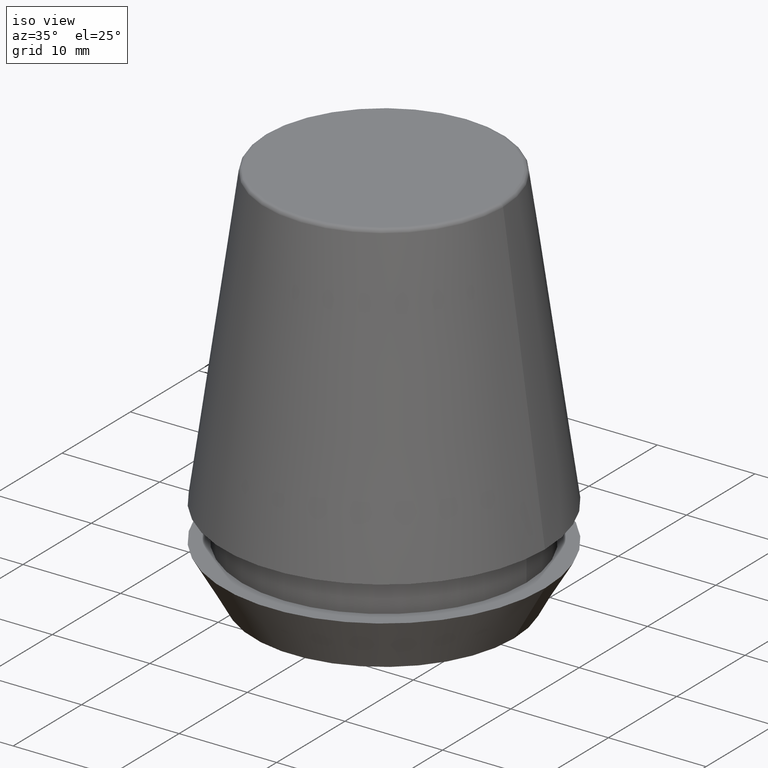
[diagram: clean part render]
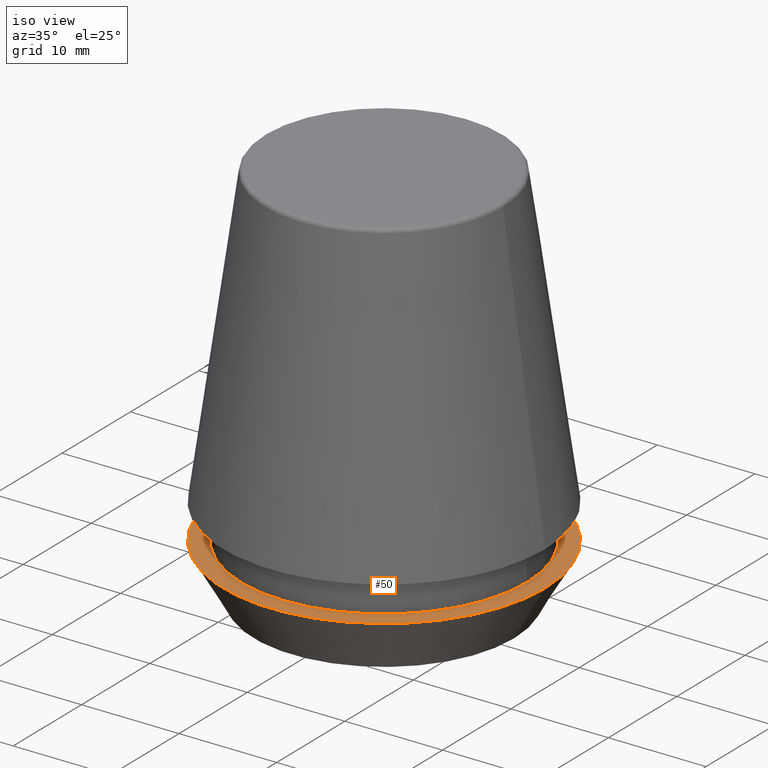
[diagram: same view with one face highlighted and labeled with its STEP entity id]
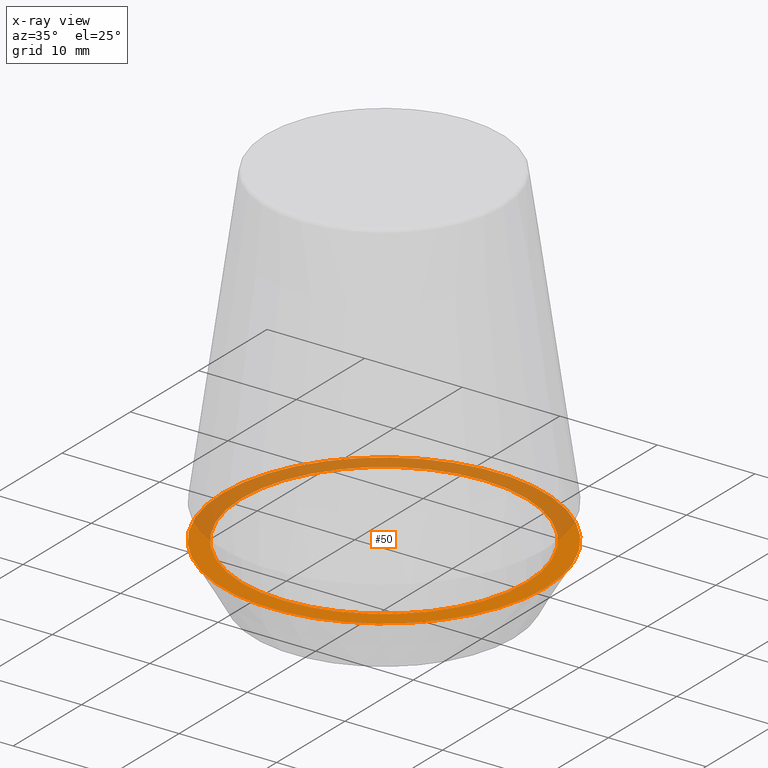
[diagram: x-ray of the same camera — body ghosted, the highlighted face saturated]
A machine part, iso view. The second image highlights one B-rep face of the part: STEP entity #50.
The next image is the same camera in x-ray: the body ghosted, the highlighted face saturated — about 46% of this face is hidden behind the body in this view.
In plain terms, the highlighted planar face has unit normal (0, 0, -1).
Its self-contained STEP definition (entity closure, byte-faithful):
#2 = CARTESIAN_POINT ( 'NONE',  ( 0.0000000000000000000, 0.0000000000000000000, 5.500000000000005300 ) ) ;
#3 = CARTESIAN_POINT ( 'NONE',  ( 16.50000000000000000, 0.0000000000000000000, 5.500000000000005300 ) ) ;
#13 = DIRECTION ( 'NONE',  ( 1.000000000000000000, 0.0000000000000000000, 0.0000000000000000000 ) ) ;
#28 = EDGE_CURVE ( 'NONE', #202, #146, #259, .T. ) ;
#32 = CARTESIAN_POINT ( 'NONE',  ( -14.60000000000000000, 1.787984326755135800E-015, 5.500000000000005300 ) ) ;
#50 = ADVANCED_FACE ( 'NONE', ( #162, #139 ), #126, .F. ) ;
#60 = DIRECTION ( 'NONE',  ( 1.000000000000000000, 0.0000000000000000000, 0.0000000000000000000 ) ) ;
#66 = DIRECTION ( 'NONE',  ( 0.0000000000000000000, 0.0000000000000000000, -1.000000000000000000 ) ) ;
#80 = EDGE_CURVE ( 'NONE', #95, #252, #267, .T. ) ;
#95 = VERTEX_POINT ( 'NONE', #222 ) ;
#101 = DIRECTION ( 'NONE',  ( -0.0000000000000000000, -0.0000000000000000000, 1.000000000000000000 ) ) ;
#109 = ORIENTED_EDGE ( 'NONE', *, *, #227, .F. ) ;
#126 = PLANE ( 'NONE',  #286 ) ;
#127 = DIRECTION ( 'NONE',  ( -0.0000000000000000000, -0.0000000000000000000, 1.000000000000000000 ) ) ;
#128 = ORIENTED_EDGE ( 'NONE', *, *, #181, .T. ) ;
#139 = FACE_OUTER_BOUND ( 'NONE', #196, .T. ) ;
#146 = VERTEX_POINT ( 'NONE', #306 ) ;
#161 = CIRCLE ( 'NONE', #197, 14.60000000000000000 ) ;
#162 = FACE_BOUND ( 'NONE', #191, .T. ) ;
#177 = CARTESIAN_POINT ( 'NONE',  ( 0.0000000000000000000, 0.0000000000000000000, 5.500000000000005300 ) ) ;
#181 = EDGE_CURVE ( 'NONE', #252, #95, #281, .T. ) ;
#183 = AXIS2_PLACEMENT_3D ( 'NONE', #2, #244, #199 ) ;
#191 = EDGE_LOOP ( 'NONE', ( #109, #302 ) ) ;
#194 = DIRECTION ( 'NONE',  ( -0.0000000000000000000, -0.0000000000000000000, 1.000000000000000000 ) ) ;
#196 = EDGE_LOOP ( 'NONE', ( #128, #289 ) ) ;
#197 = AXIS2_PLACEMENT_3D ( 'NONE', #177, #101, #229 ) ;
#199 = DIRECTION ( 'NONE',  ( 1.000000000000000000, 0.0000000000000000000, 0.0000000000000000000 ) ) ;
#202 = VERTEX_POINT ( 'NONE', #32 ) ;
#222 = CARTESIAN_POINT ( 'NONE',  ( -16.50000000000000000, 2.020667218593133100E-015, 5.500000000000005300 ) ) ;
#227 = EDGE_CURVE ( 'NONE', #146, #202, #161, .T. ) ;
#229 = DIRECTION ( 'NONE',  ( 1.000000000000000000, 0.0000000000000000000, 0.0000000000000000000 ) ) ;
#244 = DIRECTION ( 'NONE',  ( -0.0000000000000000000, -0.0000000000000000000, 1.000000000000000000 ) ) ;
#252 = VERTEX_POINT ( 'NONE', #3 ) ;
#253 = CARTESIAN_POINT ( 'NONE',  ( 0.0000000000000000000, 16.50000000000000000, 5.500000000000002700 ) ) ;
#259 = CIRCLE ( 'NONE', #314, 14.60000000000000000 ) ;
#267 = CIRCLE ( 'NONE', #375, 16.50000000000000000 ) ;
#281 = CIRCLE ( 'NONE', #183, 16.50000000000000000 ) ;
#286 = AXIS2_PLACEMENT_3D ( 'NONE', #253, #66, #287 ) ;
#287 = DIRECTION ( 'NONE',  ( -1.000000000000000000, 0.0000000000000000000, -0.0000000000000000000 ) ) ;
#289 = ORIENTED_EDGE ( 'NONE', *, *, #80, .T. ) ;
#302 = ORIENTED_EDGE ( 'NONE', *, *, #28, .F. ) ;
#306 = CARTESIAN_POINT ( 'NONE',  ( 14.60000000000000000, 0.0000000000000000000, 5.500000000000005300 ) ) ;
#313 = CARTESIAN_POINT ( 'NONE',  ( 0.0000000000000000000, 0.0000000000000000000, 5.500000000000005300 ) ) ;
#314 = AXIS2_PLACEMENT_3D ( 'NONE', #313, #127, #13 ) ;
#344 = CARTESIAN_POINT ( 'NONE',  ( 0.0000000000000000000, 0.0000000000000000000, 5.500000000000005300 ) ) ;
#375 = AXIS2_PLACEMENT_3D ( 'NONE', #344, #194, #60 ) ;